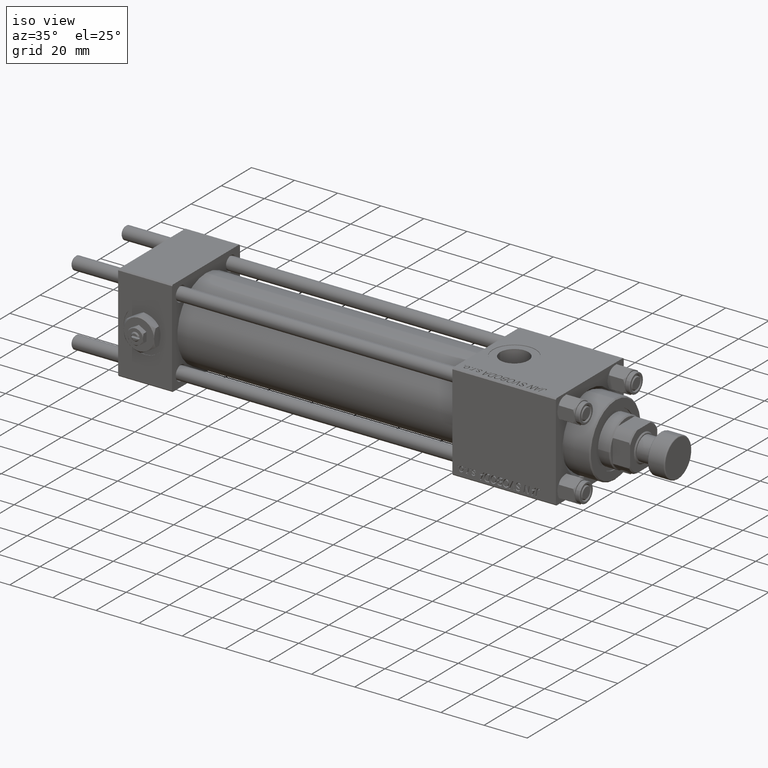
[diagram: clean part render]
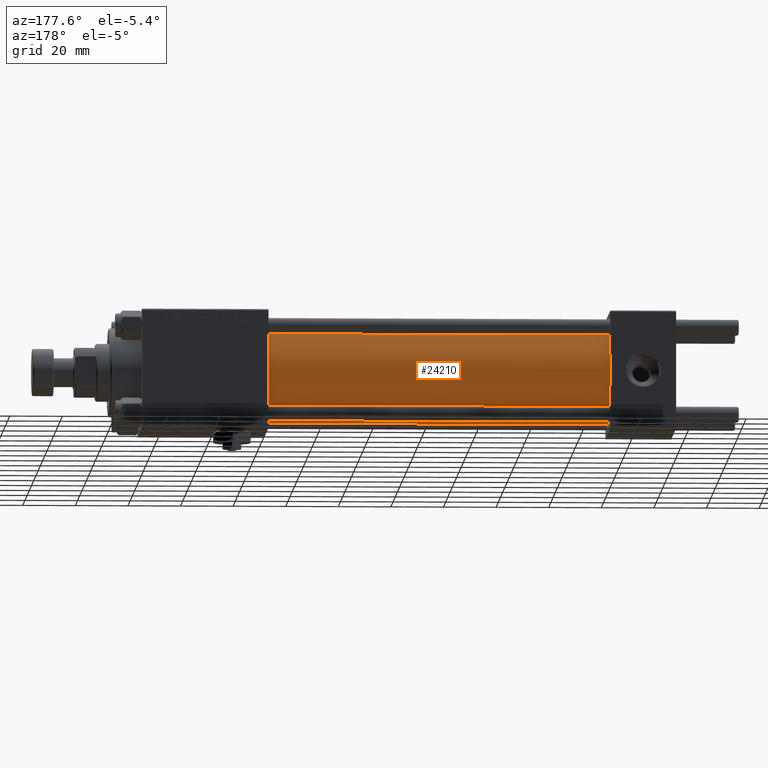
[diagram: tour spotlight — one face highlighted and labeled with its STEP entity id]
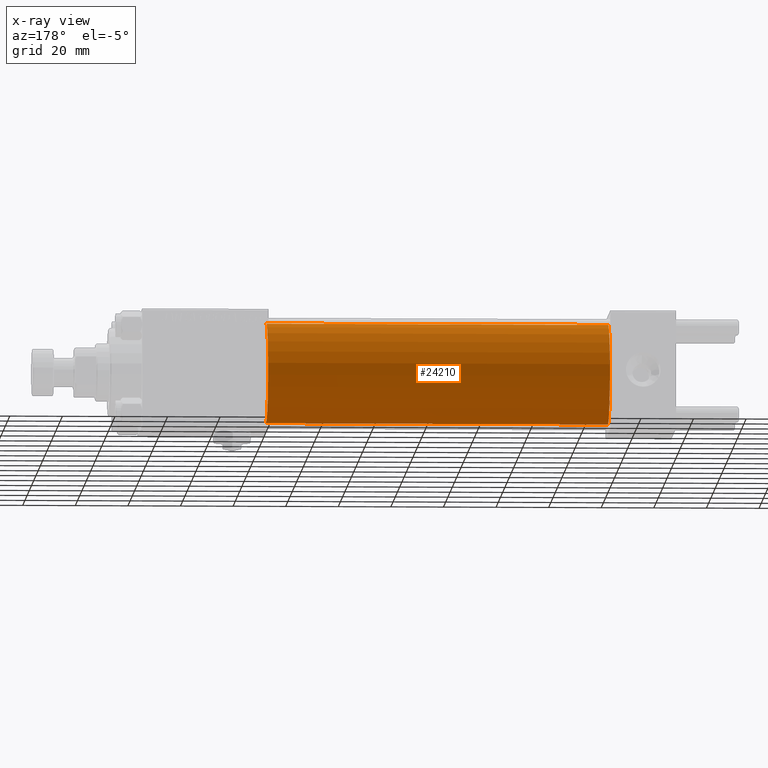
[diagram: x-ray of the same camera — body ghosted, this tour face saturated]
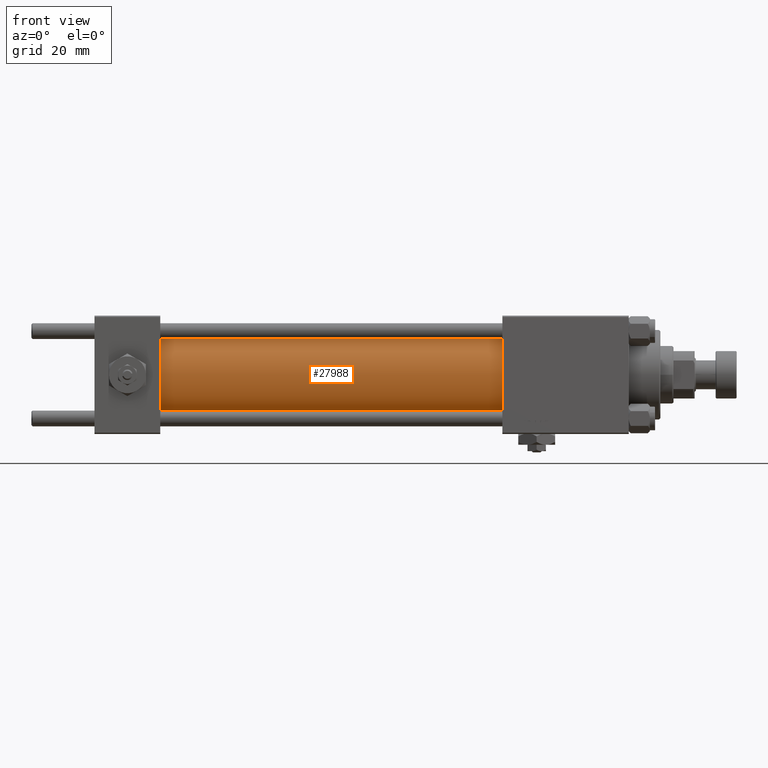
[diagram: tour spotlight — one face highlighted and labeled with its STEP entity id]
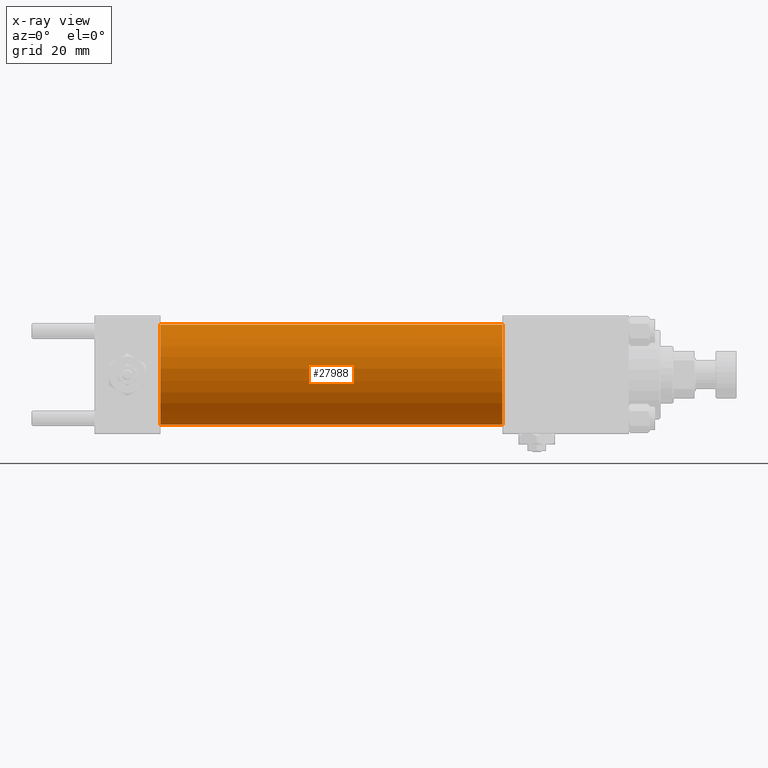
[diagram: x-ray of the same camera — body ghosted, this tour face saturated]
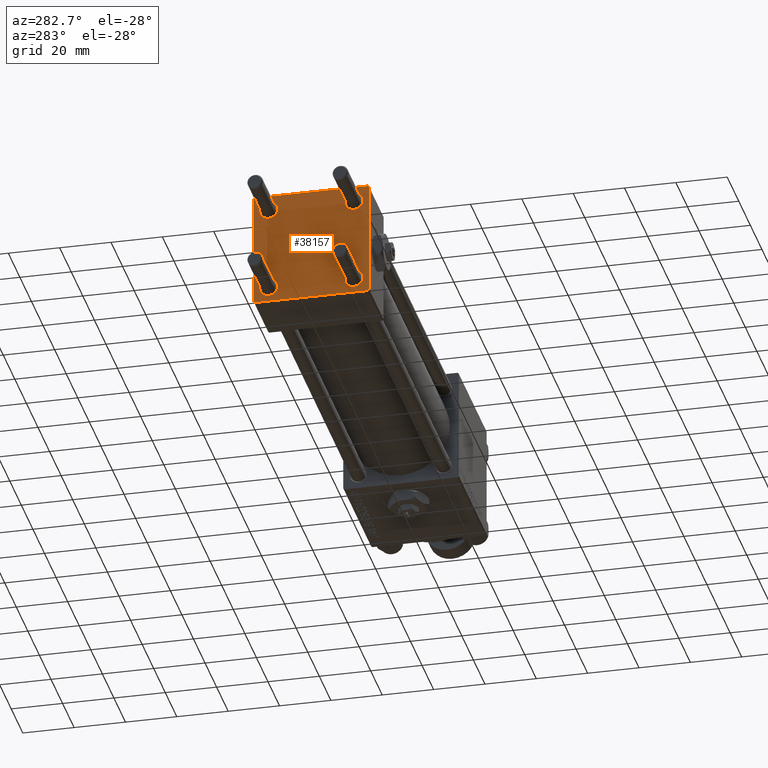
[diagram: tour spotlight — one face highlighted and labeled with its STEP entity id]
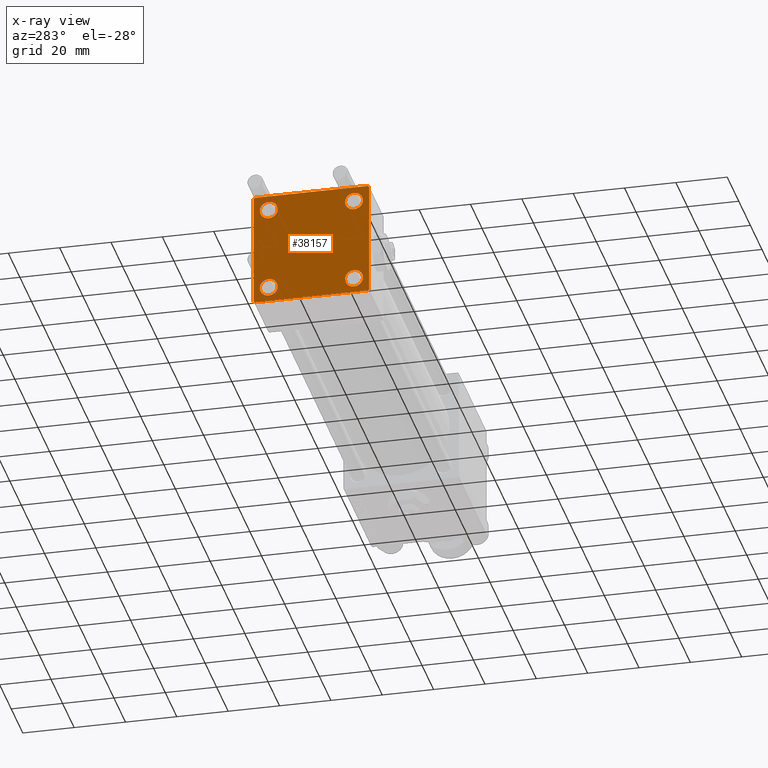
[diagram: x-ray of the same camera — body ghosted, this tour face saturated]
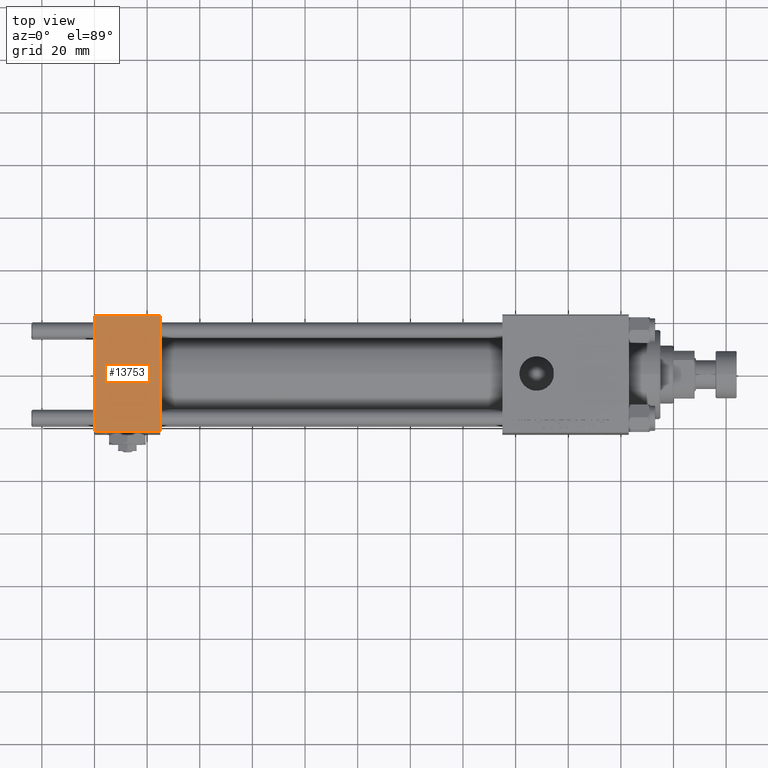
[diagram: tour spotlight — one face highlighted and labeled with its STEP entity id]
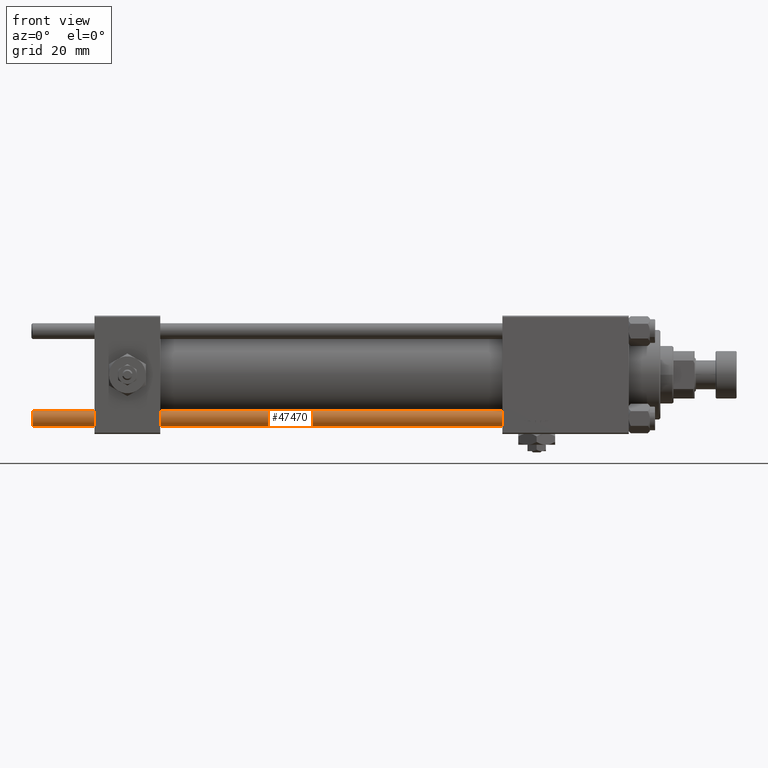
[diagram: tour spotlight — one face highlighted and labeled with its STEP entity id]
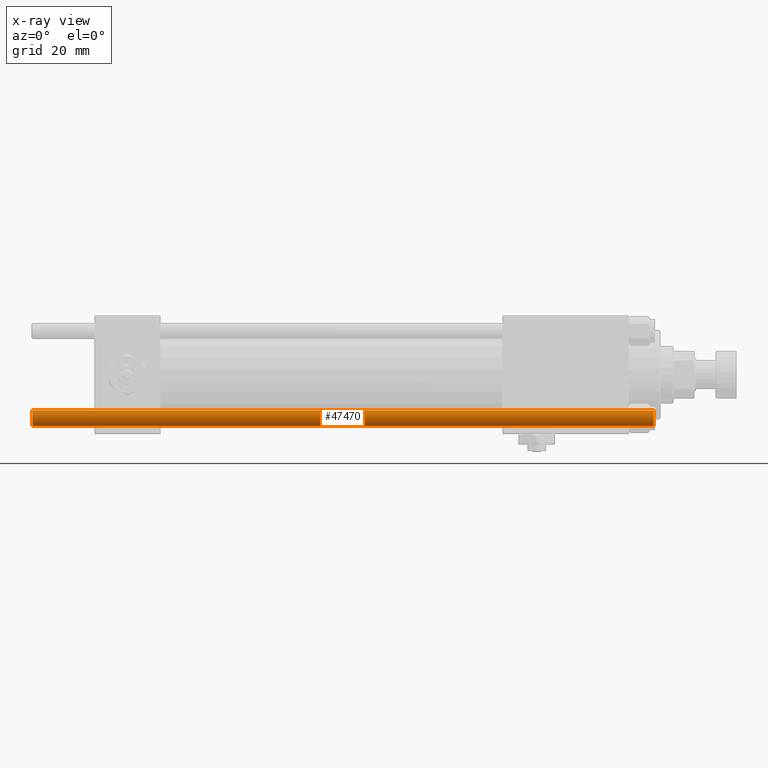
[diagram: x-ray of the same camera — body ghosted, this tour face saturated]
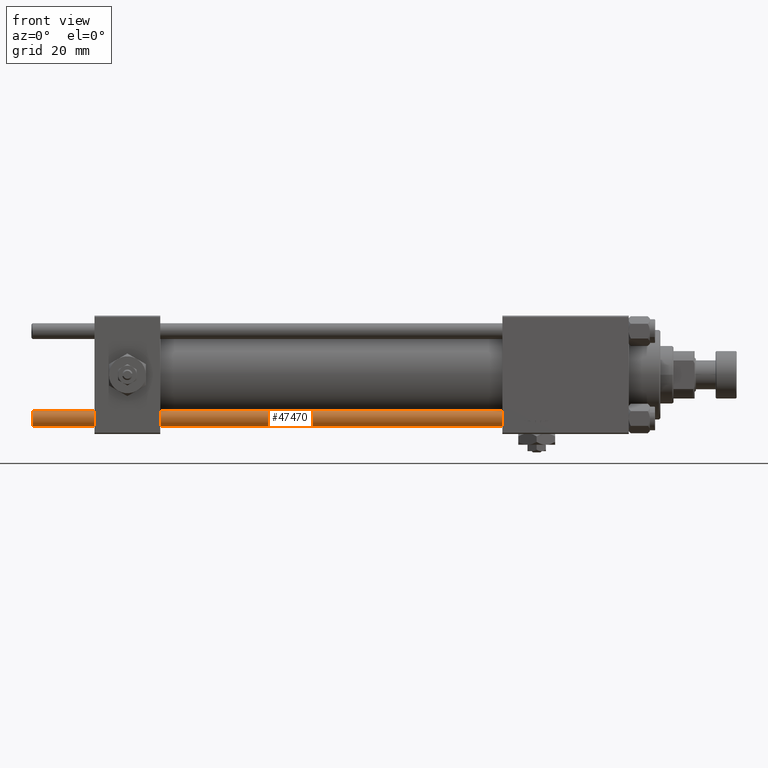
[diagram: tour spotlight — one face highlighted and labeled with its STEP entity id]
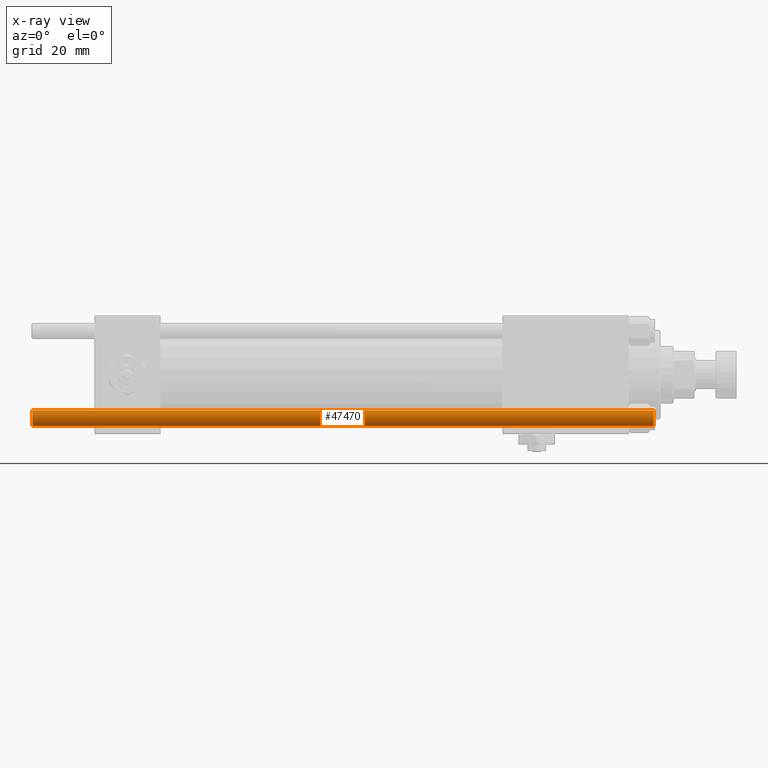
[diagram: x-ray of the same camera — body ghosted, this tour face saturated]
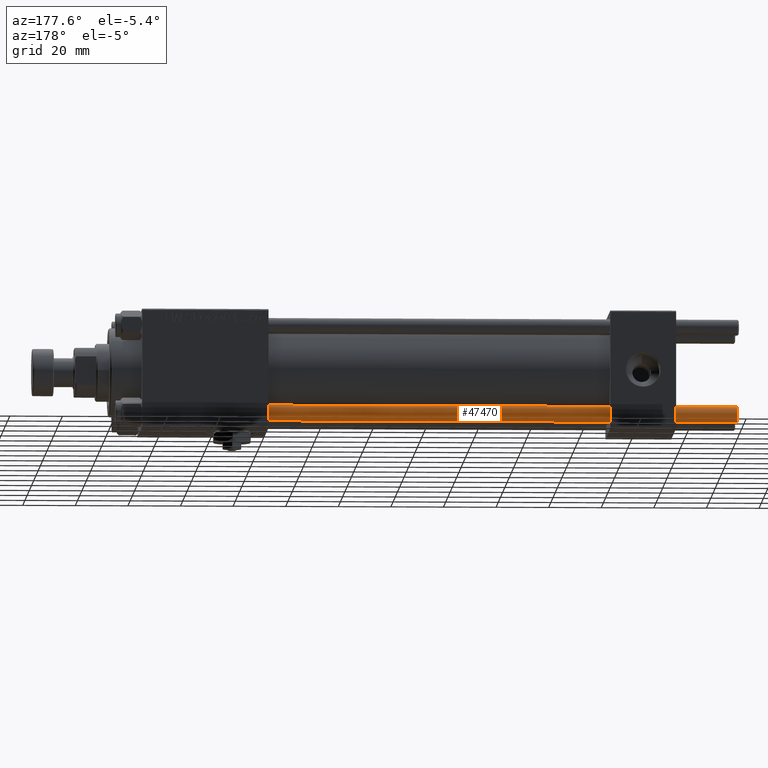
[diagram: tour spotlight — one face highlighted and labeled with its STEP entity id]
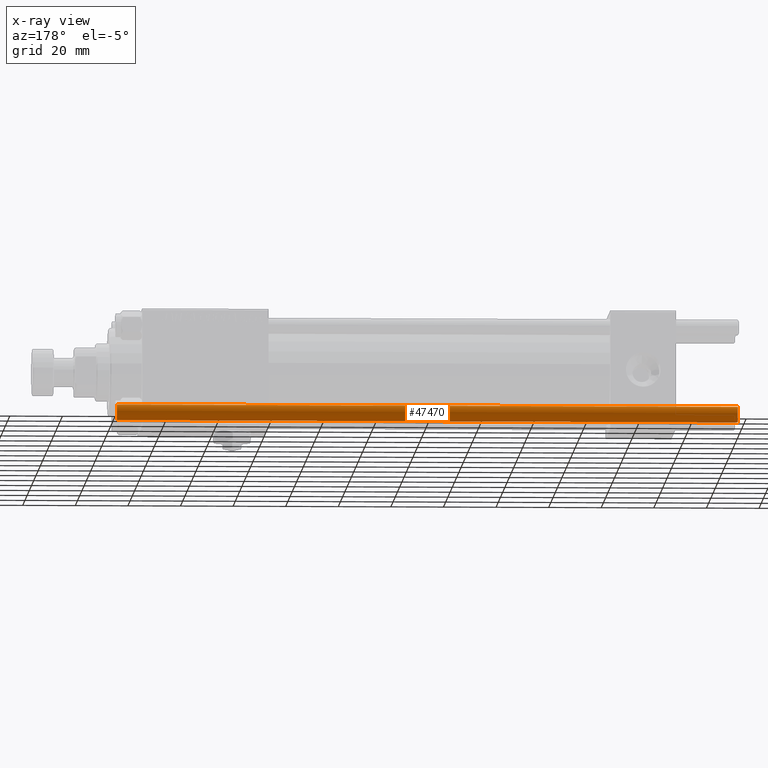
[diagram: x-ray of the same camera — body ghosted, this tour face saturated]
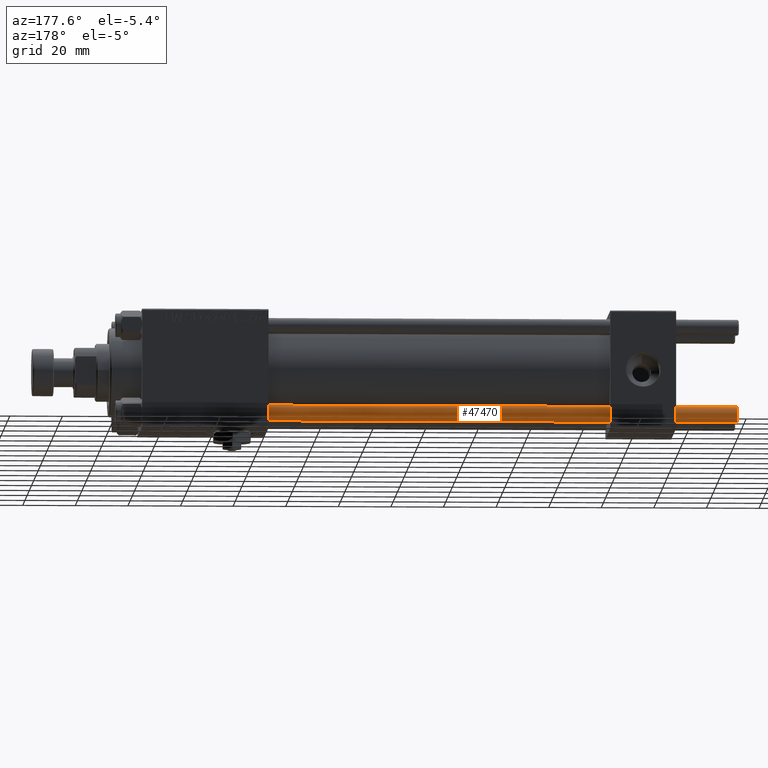
[diagram: tour spotlight — one face highlighted and labeled with its STEP entity id]
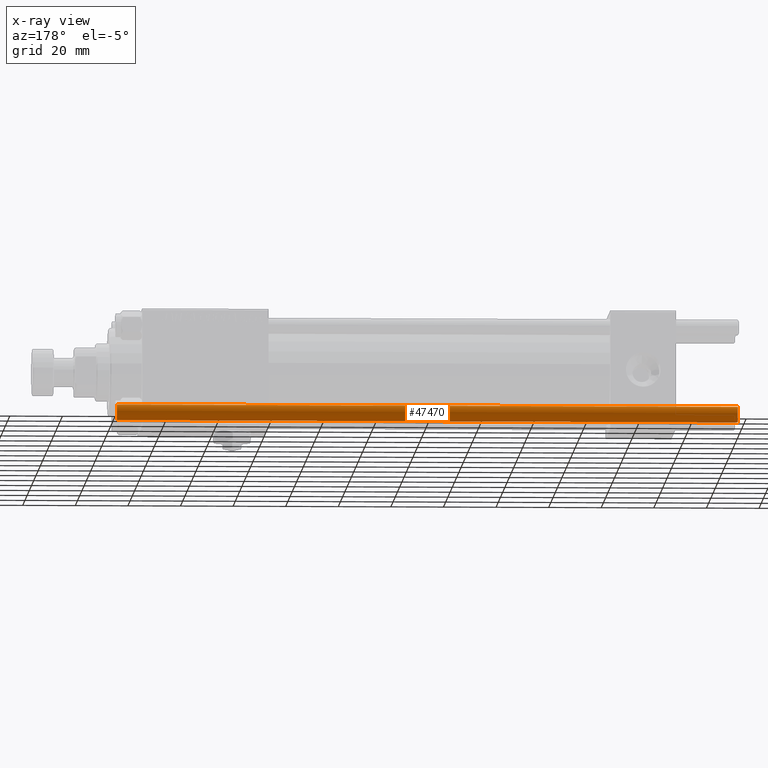
[diagram: x-ray of the same camera — body ghosted, this tour face saturated]
A machine part: a face-by-face anatomy tour. The part has 1246 B-rep faces; the first image is the clean iso view, then the 8 largest visible faces are spotlighted one at a time (largest first), each with its STEP entity span.

Face 1 — auxiliary view, entity #24210. An x-ray twin of the same camera follows (body ghosted, this face saturated) — the face is partly hidden behind the body. In plain terms, the highlighted cylindrical surface (partial cylindrical patch) has radius 19 mm, axis along (-1, -0, -0).
Definition (entity closure, byte-faithful):
#246 = EDGE_CURVE ( 'NONE', #14867, #5643, #21265, .T. ) ;
#5452 = CARTESIAN_POINT ( 'NONE',  ( 24.99999999999999289, 2.326828918379970970E-15, -19.00000000000000000 ) ) ;
#5643 = VERTEX_POINT ( 'NONE', #5452 ) ;
#6971 = CARTESIAN_POINT ( 'NONE',  ( 155.0000000000000000, 0.000000000000000000, 19.00000000000000000 ) ) ;
#8452 = AXIS2_PLACEMENT_3D ( 'NONE', #18683, #26353, #10503 ) ;
#9302 = ORIENTED_EDGE ( 'NONE', *, *, #48230, .F. ) ;
#9327 = ORIENTED_EDGE ( 'NONE', *, *, #17625, .F. ) ;
#10503 = DIRECTION ( 'NONE',  ( 0.000000000000000000, 0.000000000000000000, 1.000000000000000000 ) ) ;
#10697 = ORIENTED_EDGE ( 'NONE', *, *, #246, .T. ) ;
#10985 = DIRECTION ( 'NONE',  ( 0.000000000000000000, 0.000000000000000000, -1.000000000000000000 ) ) ;
#11005 = VECTOR ( 'NONE', #21394, 1000.000000000000000 ) ;
#14814 = CARTESIAN_POINT ( 'NONE',  ( 155.0000000000000000, 0.000000000000000000, 0.000000000000000000 ) ) ;
#14867 = VERTEX_POINT ( 'NONE', #48050 ) ;
#16583 = VERTEX_POINT ( 'NONE', #21977 ) ;
#16642 = LINE ( 'NONE', #37002, #11005 ) ;
#17625 = EDGE_CURVE ( 'NONE', #26068, #16583, #16642, .T. ) ;
#18683 = CARTESIAN_POINT ( 'NONE',  ( 24.99999999999999289, 0.000000000000000000, 0.000000000000000000 ) ) ;
#19546 = FACE_OUTER_BOUND ( 'NONE', #30317, .T. ) ;
#20222 = DIRECTION ( 'NONE',  ( -1.000000000000000000, -0.000000000000000000, -0.000000000000000000 ) ) ;
#21265 = LINE ( 'NONE', #32905, #48645 ) ;
#21394 = DIRECTION ( 'NONE',  ( -1.000000000000000000, -0.000000000000000000, -0.000000000000000000 ) ) ;
#21977 = CARTESIAN_POINT ( 'NONE',  ( 24.99999999999999289, 0.000000000000000000, 19.00000000000000000 ) ) ;
#22322 = EDGE_CURVE ( 'NONE', #5643, #16583, #31240, .T. ) ;
#24210 = ADVANCED_FACE ( 'NONE', ( #19546 ), #39148, .T. ) ;
#26068 = VERTEX_POINT ( 'NONE', #6971 ) ;
#26353 = DIRECTION ( 'NONE',  ( 1.000000000000000000, -0.000000000000000000, 0.000000000000000000 ) ) ;
#26385 = CIRCLE ( 'NONE', #41572, 19.00000000000000000 ) ;
#30317 = EDGE_LOOP ( 'NONE', ( #9302, #10697, #35541, #9327 ) ) ;
#30481 = AXIS2_PLACEMENT_3D ( 'NONE', #14814, #51294, #42607 ) ;
#31062 = CARTESIAN_POINT ( 'NONE',  ( 155.0000000000000000, 0.000000000000000000, 0.000000000000000000 ) ) ;
#31240 = CIRCLE ( 'NONE', #8452, 19.00000000000000000 ) ;
#32905 = CARTESIAN_POINT ( 'NONE',  ( 155.0000000000000000, 2.326828918379970970E-15, -19.00000000000000000 ) ) ;
#35541 = ORIENTED_EDGE ( 'NONE', *, *, #22322, .T. ) ;
#37002 = CARTESIAN_POINT ( 'NONE',  ( 155.0000000000000000, 0.000000000000000000, 19.00000000000000000 ) ) ;
#39148 = CYLINDRICAL_SURFACE ( 'NONE', #30481, 19.00000000000000000 ) ;
#41572 = AXIS2_PLACEMENT_3D ( 'NONE', #31062, #47210, #10985 ) ;
#42607 = DIRECTION ( 'NONE',  ( 0.000000000000000000, 0.000000000000000000, 1.000000000000000000 ) ) ;
#47210 = DIRECTION ( 'NONE',  ( 1.000000000000000000, 0.000000000000000000, 0.000000000000000000 ) ) ;
#48050 = CARTESIAN_POINT ( 'NONE',  ( 155.0000000000000000, 2.326828918379970970E-15, -19.00000000000000000 ) ) ;
#48230 = EDGE_CURVE ( 'NONE', #14867, #26068, #26385, .T. ) ;
#48645 = VECTOR ( 'NONE', #20222, 1000.000000000000000 ) ;
#51294 = DIRECTION ( 'NONE',  ( -1.000000000000000000, -0.000000000000000000, -0.000000000000000000 ) ) ;

Face 2 — front view, entity #27988. An x-ray twin of the same camera follows (body ghosted, this face saturated) — the face is partly hidden behind the body. In plain terms, the highlighted cylindrical surface (partial cylindrical patch) has radius 19 mm, axis along (-1, -0, -0).
Definition (entity closure, byte-faithful):
#246 = EDGE_CURVE ( 'NONE', #14867, #5643, #21265, .T. ) ;
#883 = EDGE_LOOP ( 'NONE', ( #27233, #44278, #13823, #18628 ) ) ;
#1967 = DIRECTION ( 'NONE',  ( 1.000000000000000000, -0.000000000000000000, 0.000000000000000000 ) ) ;
#1993 = DIRECTION ( 'NONE',  ( 0.000000000000000000, 0.000000000000000000, -1.000000000000000000 ) ) ;
#5452 = CARTESIAN_POINT ( 'NONE',  ( 24.99999999999999289, 2.326828918379970970E-15, -19.00000000000000000 ) ) ;
#5643 = VERTEX_POINT ( 'NONE', #5452 ) ;
#6971 = CARTESIAN_POINT ( 'NONE',  ( 155.0000000000000000, 0.000000000000000000, 19.00000000000000000 ) ) ;
#7561 = AXIS2_PLACEMENT_3D ( 'NONE', #42676, #1967, #42412 ) ;
#11005 = VECTOR ( 'NONE', #21394, 1000.000000000000000 ) ;
#11297 = FACE_OUTER_BOUND ( 'NONE', #883, .T. ) ;
#13490 = CIRCLE ( 'NONE', #7561, 19.00000000000000000 ) ;
#13624 = CARTESIAN_POINT ( 'NONE',  ( 155.0000000000000000, 0.000000000000000000, 0.000000000000000000 ) ) ;
#13823 = ORIENTED_EDGE ( 'NONE', *, *, #17625, .T. ) ;
#14867 = VERTEX_POINT ( 'NONE', #48050 ) ;
#15524 = DIRECTION ( 'NONE',  ( 0.000000000000000000, 0.000000000000000000, 1.000000000000000000 ) ) ;
#16297 = EDGE_CURVE ( 'NONE', #16583, #5643, #13490, .T. ) ;
#16583 = VERTEX_POINT ( 'NONE', #21977 ) ;
#16642 = LINE ( 'NONE', #37002, #11005 ) ;
#17582 = DIRECTION ( 'NONE',  ( 1.000000000000000000, 0.000000000000000000, 0.000000000000000000 ) ) ;
#17625 = EDGE_CURVE ( 'NONE', #26068, #16583, #16642, .T. ) ;
#18628 = ORIENTED_EDGE ( 'NONE', *, *, #16297, .T. ) ;
#19727 = DIRECTION ( 'NONE',  ( -1.000000000000000000, -0.000000000000000000, -0.000000000000000000 ) ) ;
#20222 = DIRECTION ( 'NONE',  ( -1.000000000000000000, -0.000000000000000000, -0.000000000000000000 ) ) ;
#20445 = AXIS2_PLACEMENT_3D ( 'NONE', #13624, #17582, #1993 ) ;
#21265 = LINE ( 'NONE', #32905, #48645 ) ;
#21394 = DIRECTION ( 'NONE',  ( -1.000000000000000000, -0.000000000000000000, -0.000000000000000000 ) ) ;
#21977 = CARTESIAN_POINT ( 'NONE',  ( 24.99999999999999289, 0.000000000000000000, 19.00000000000000000 ) ) ;
#26068 = VERTEX_POINT ( 'NONE', #6971 ) ;
#27233 = ORIENTED_EDGE ( 'NONE', *, *, #246, .F. ) ;
#27400 = CYLINDRICAL_SURFACE ( 'NONE', #44178, 19.00000000000000000 ) ;
#27988 = ADVANCED_FACE ( 'NONE', ( #11297 ), #27400, .T. ) ;
#31428 = CIRCLE ( 'NONE', #20445, 19.00000000000000000 ) ;
#32905 = CARTESIAN_POINT ( 'NONE',  ( 155.0000000000000000, 2.326828918379970970E-15, -19.00000000000000000 ) ) ;
#34122 = CARTESIAN_POINT ( 'NONE',  ( 155.0000000000000000, 0.000000000000000000, 0.000000000000000000 ) ) ;
#37002 = CARTESIAN_POINT ( 'NONE',  ( 155.0000000000000000, 0.000000000000000000, 19.00000000000000000 ) ) ;
#42412 = DIRECTION ( 'NONE',  ( 0.000000000000000000, 0.000000000000000000, 1.000000000000000000 ) ) ;
#42676 = CARTESIAN_POINT ( 'NONE',  ( 24.99999999999999289, 0.000000000000000000, 0.000000000000000000 ) ) ;
#44178 = AXIS2_PLACEMENT_3D ( 'NONE', #34122, #19727, #15524 ) ;
#44278 = ORIENTED_EDGE ( 'NONE', *, *, #49016, .F. ) ;
#48050 = CARTESIAN_POINT ( 'NONE',  ( 155.0000000000000000, 2.326828918379970970E-15, -19.00000000000000000 ) ) ;
#48645 = VECTOR ( 'NONE', #20222, 1000.000000000000000 ) ;
#49016 = EDGE_CURVE ( 'NONE', #26068, #14867, #31428, .T. ) ;

Face 3 — auxiliary view, entity #38157. An x-ray twin of the same camera follows (body ghosted, this face saturated) — the face is partly hidden behind the body. In plain terms, the highlighted planar face has unit normal (-1, 0, 0).
Definition (entity closure, byte-faithful):
#16 = CARTESIAN_POINT ( 'NONE',  ( 0.000000000000000000, -21.99999999999997868, 22.50000000000000000 ) ) ;
#72 = LINE ( 'NONE', #36552, #29389 ) ;
#180 = DIRECTION ( 'NONE',  ( -1.000000000000000000, 0.000000000000000000, -0.000000000000000000 ) ) ;
#210 = CIRCLE ( 'NONE', #36505, 3.499999999999996003 ) ;
#632 = AXIS2_PLACEMENT_3D ( 'NONE', #29166, #45324, #45065 ) ;
#1038 = EDGE_LOOP ( 'NONE', ( #8606, #38914, #38726, #8585, #18859, #50607, #6796, #32899 ) ) ;
#1085 = EDGE_CURVE ( 'NONE', #46774, #8761, #7137, .T. ) ;
#1416 = AXIS2_PLACEMENT_3D ( 'NONE', #16037, #180, #44857 ) ;
#1659 = CARTESIAN_POINT ( 'NONE',  ( 0.000000000000000000, -16.59999999999999076, -13.10000000000001030 ) ) ;
#2107 = EDGE_CURVE ( 'NONE', #28341, #45629, #43638, .T. ) ;
#2925 = CARTESIAN_POINT ( 'NONE',  ( 0.000000000000000000, -22.25000000000014566, -22.24999999999984013 ) ) ;
#3137 = VERTEX_POINT ( 'NONE', #7156 ) ;
#3506 = DIRECTION ( 'NONE',  ( 0.000000000000000000, 0.000000000000000000, -1.000000000000000000 ) ) ;
#3515 = DIRECTION ( 'NONE',  ( 0.000000000000000000, 0.000000000000000000, 1.000000000000000000 ) ) ;
#3835 = DIRECTION ( 'NONE',  ( 1.000000000000000000, -0.000000000000000000, 0.000000000000000000 ) ) ;
#3878 = FACE_BOUND ( 'NONE', #20753, .T. ) ;
#4080 = CIRCLE ( 'NONE', #31934, 3.499999999999996003 ) ;
#4141 = VERTEX_POINT ( 'NONE', #38188 ) ;
#4579 = CARTESIAN_POINT ( 'NONE',  ( 0.000000000000000000, -21.99999999999997158, -22.50000000000000711 ) ) ;
#5550 = CARTESIAN_POINT ( 'NONE',  ( 0.000000000000000000, -16.59999999999999076, -20.10000000000000497 ) ) ;
#6304 = ORIENTED_EDGE ( 'NONE', *, *, #49009, .T. ) ;
#6639 = EDGE_CURVE ( 'NONE', #3137, #48517, #42843, .T. ) ;
#6674 = CARTESIAN_POINT ( 'NONE',  ( -0.000000000000000000, -22.24999999999984013, 22.25000000000015277 ) ) ;
#6796 = ORIENTED_EDGE ( 'NONE', *, *, #7475, .F. ) ;
#7137 = LINE ( 'NONE', #22988, #45287 ) ;
#7156 = CARTESIAN_POINT ( 'NONE',  ( 0.000000000000000000, 16.59999999999999787, 13.10000000000000675 ) ) ;
#7475 = EDGE_CURVE ( 'NONE', #4141, #12046, #20356, .T. ) ;
#8369 = FACE_OUTER_BOUND ( 'NONE', #1038, .T. ) ;
#8585 = ORIENTED_EDGE ( 'NONE', *, *, #2107, .T. ) ;
#8606 = ORIENTED_EDGE ( 'NONE', *, *, #13146, .T. ) ;
#8761 = VERTEX_POINT ( 'NONE', #32342 ) ;
#9301 = DIRECTION ( 'NONE',  ( 0.000000000000000000, 0.000000000000000000, 1.000000000000000000 ) ) ;
#9397 = VERTEX_POINT ( 'NONE', #45180 ) ;
#10382 = DIRECTION ( 'NONE',  ( -0.000000000000000000, 0.7071067811865525687, 0.7071067811865425767 ) ) ;
#10872 = EDGE_CURVE ( 'NONE', #26676, #36715, #52131, .T. ) ;
#11453 = LINE ( 'NONE', #39743, #49790 ) ;
#11517 = CARTESIAN_POINT ( 'NONE',  ( 0.000000000000000000, 16.59999999999999787, -20.10000000000000142 ) ) ;
#11580 = LINE ( 'NONE', #22938, #28000 ) ;
#11896 = CARTESIAN_POINT ( 'NONE',  ( 0.000000000000000000, -16.59999999999999076, 16.60000000000000853 ) ) ;
#12046 = VERTEX_POINT ( 'NONE', #16 ) ;
#12296 = CARTESIAN_POINT ( 'NONE',  ( 0.000000000000000000, 16.59999999999999787, 16.60000000000000497 ) ) ;
#13146 = EDGE_CURVE ( 'NONE', #51737, #46774, #72, .T. ) ;
#13255 = EDGE_CURVE ( 'NONE', #9397, #33264, #4080, .T. ) ;
#13886 = CARTESIAN_POINT ( 'NONE',  ( 0.000000000000000000, 16.59999999999999787, -16.60000000000000497 ) ) ;
#13949 = CIRCLE ( 'NONE', #41787, 3.499999999999996003 ) ;
#14051 = VERTEX_POINT ( 'NONE', #45223 ) ;
#14541 = CARTESIAN_POINT ( 'NONE',  ( 0.000000000000000000, 22.50000000000000000, -21.99999999999996803 ) ) ;
#15781 = VECTOR ( 'NONE', #39671, 1000.000000000000000 ) ;
#16037 = CARTESIAN_POINT ( 'NONE',  ( 0.000000000000000000, 0.000000000000000000, 0.000000000000000000 ) ) ;
#16456 = EDGE_CURVE ( 'NONE', #14051, #45629, #11453, .T. ) ;
#16645 = AXIS2_PLACEMENT_3D ( 'NONE', #34994, #35511, #3515 ) ;
#17103 = CIRCLE ( 'NONE', #50883, 3.499999999999996003 ) ;
#17231 = CARTESIAN_POINT ( 'NONE',  ( 0.000000000000000000, -16.59999999999999076, 16.60000000000000853 ) ) ;
#18103 = EDGE_CURVE ( 'NONE', #48517, #3137, #52276, .T. ) ;
#18859 = ORIENTED_EDGE ( 'NONE', *, *, #16456, .F. ) ;
#19430 = DIRECTION ( 'NONE',  ( 0.000000000000000000, 0.000000000000000000, 1.000000000000000000 ) ) ;
#19995 = FACE_BOUND ( 'NONE', #44991, .T. ) ;
#20356 = LINE ( 'NONE', #36501, #28506 ) ;
#20490 = DIRECTION ( 'NONE',  ( 1.000000000000000000, -0.000000000000000000, 0.000000000000000000 ) ) ;
#20747 = CARTESIAN_POINT ( 'NONE',  ( 0.000000000000000000, -16.59999999999999076, -16.60000000000000853 ) ) ;
#20753 = EDGE_LOOP ( 'NONE', ( #22936, #42099 ) ) ;
#22936 = ORIENTED_EDGE ( 'NONE', *, *, #13255, .T. ) ;
#22938 = CARTESIAN_POINT ( 'NONE',  ( 0.000000000000000000, 22.50000000000000000, -22.49999999999999645 ) ) ;
#22988 = CARTESIAN_POINT ( 'NONE',  ( 0.000000000000000000, 22.25000000000014566, -22.24999999999984013 ) ) ;
#23092 = AXIS2_PLACEMENT_3D ( 'NONE', #11896, #43898, #40904 ) ;
#24057 = VECTOR ( 'NONE', #48789, 1000.000000000000114 ) ;
#24473 = PLANE ( 'NONE',  #1416 ) ;
#24836 = DIRECTION ( 'NONE',  ( 0.000000000000000000, -1.000000000000000000, -7.709882115452476934E-17 ) ) ;
#25346 = AXIS2_PLACEMENT_3D ( 'NONE', #12296, #3835, #19430 ) ;
#26537 = DIRECTION ( 'NONE',  ( 1.000000000000000000, -0.000000000000000000, 0.000000000000000000 ) ) ;
#26556 = ORIENTED_EDGE ( 'NONE', *, *, #35360, .T. ) ;
#26676 = VERTEX_POINT ( 'NONE', #5550 ) ;
#26775 = EDGE_LOOP ( 'NONE', ( #45018, #46957 ) ) ;
#28000 = VECTOR ( 'NONE', #35111, 1000.000000000000000 ) ;
#28341 = VERTEX_POINT ( 'NONE', #4579 ) ;
#28446 = FACE_BOUND ( 'NONE', #52022, .T. ) ;
#28506 = VECTOR ( 'NONE', #24836, 1000.000000000000000 ) ;
#28574 = EDGE_CURVE ( 'NONE', #14051, #12046, #50823, .T. ) ;
#28676 = DIRECTION ( 'NONE',  ( 0.000000000000000000, 0.000000000000000000, 1.000000000000000000 ) ) ;
#29166 = CARTESIAN_POINT ( 'NONE',  ( 0.000000000000000000, 16.59999999999999787, 16.60000000000000497 ) ) ;
#29184 = DIRECTION ( 'NONE',  ( 0.000000000000000000, 0.000000000000000000, 1.000000000000000000 ) ) ;
#29389 = VECTOR ( 'NONE', #48454, 1000.000000000000000 ) ;
#29807 = VECTOR ( 'NONE', #10382, 999.9999999999998863 ) ;
#31176 = DIRECTION ( 'NONE',  ( -0.000000000000000000, -0.7071067811865426878, -0.7071067811865524577 ) ) ;
#31934 = AXIS2_PLACEMENT_3D ( 'NONE', #17231, #45536, #9301 ) ;
#32291 = EDGE_CURVE ( 'NONE', #33264, #9397, #36609, .T. ) ;
#32316 = ORIENTED_EDGE ( 'NONE', *, *, #45562, .T. ) ;
#32342 = CARTESIAN_POINT ( 'NONE',  ( 0.000000000000000000, 21.99999999999999289, -22.49999999999999645 ) ) ;
#32657 = LINE ( 'NONE', #44061, #24057 ) ;
#32899 = ORIENTED_EDGE ( 'NONE', *, *, #36343, .T. ) ;
#33264 = VERTEX_POINT ( 'NONE', #42804 ) ;
#34994 = CARTESIAN_POINT ( 'NONE',  ( 0.000000000000000000, -16.59999999999999076, -16.60000000000000853 ) ) ;
#35111 = DIRECTION ( 'NONE',  ( 0.000000000000000000, -1.000000000000000000, -2.312964634635742957E-16 ) ) ;
#35360 = EDGE_CURVE ( 'NONE', #50947, #40035, #13949, .T. ) ;
#35511 = DIRECTION ( 'NONE',  ( 1.000000000000000000, -0.000000000000000000, 0.000000000000000000 ) ) ;
#36320 = CARTESIAN_POINT ( 'NONE',  ( 0.000000000000000000, 22.50000000000000000, 21.99999999999999645 ) ) ;
#36343 = EDGE_CURVE ( 'NONE', #4141, #51737, #32657, .T. ) ;
#36501 = CARTESIAN_POINT ( 'NONE',  ( 0.000000000000000000, 22.50000000000000000, 22.50000000000000355 ) ) ;
#36505 = AXIS2_PLACEMENT_3D ( 'NONE', #20747, #20490, #28676 ) ;
#36552 = CARTESIAN_POINT ( 'NONE',  ( 0.000000000000000000, 22.50000000000000000, 22.50000000000000355 ) ) ;
#36609 = CIRCLE ( 'NONE', #23092, 3.499999999999996003 ) ;
#36715 = VERTEX_POINT ( 'NONE', #1659 ) ;
#38157 = ADVANCED_FACE ( 'NONE', ( #3878, #19995, #28446, #40630, #8369 ), #24473, .T. ) ;
#38188 = CARTESIAN_POINT ( 'NONE',  ( 0.000000000000000000, 21.99999999999999289, 22.50000000000000355 ) ) ;
#38206 = DIRECTION ( 'NONE',  ( 0.000000000000000000, 0.000000000000000000, 1.000000000000000000 ) ) ;
#38726 = ORIENTED_EDGE ( 'NONE', *, *, #47830, .T. ) ;
#38914 = ORIENTED_EDGE ( 'NONE', *, *, #1085, .T. ) ;
#39671 = DIRECTION ( 'NONE',  ( 0.000000000000000000, -0.7071067811865426878, 0.7071067811865524577 ) ) ;
#39743 = CARTESIAN_POINT ( 'NONE',  ( 0.000000000000000000, -22.50000000000000000, 22.50000000000000000 ) ) ;
#40035 = VERTEX_POINT ( 'NONE', #11517 ) ;
#40044 = CARTESIAN_POINT ( 'NONE',  ( 0.000000000000000000, 16.59999999999999787, -13.10000000000000675 ) ) ;
#40630 = FACE_BOUND ( 'NONE', #26775, .T. ) ;
#40904 = DIRECTION ( 'NONE',  ( 0.000000000000000000, 0.000000000000000000, 1.000000000000000000 ) ) ;
#41119 = DIRECTION ( 'NONE',  ( 1.000000000000000000, -0.000000000000000000, 0.000000000000000000 ) ) ;
#41647 = CARTESIAN_POINT ( 'NONE',  ( 0.000000000000000000, -22.50000000000000000, -21.99999999999997158 ) ) ;
#41787 = AXIS2_PLACEMENT_3D ( 'NONE', #13886, #41119, #29184 ) ;
#42099 = ORIENTED_EDGE ( 'NONE', *, *, #32291, .T. ) ;
#42436 = CARTESIAN_POINT ( 'NONE',  ( 0.000000000000000000, 16.59999999999999787, -16.60000000000000497 ) ) ;
#42804 = CARTESIAN_POINT ( 'NONE',  ( 0.000000000000000000, -16.59999999999999076, 13.10000000000001030 ) ) ;
#42843 = CIRCLE ( 'NONE', #632, 3.499999999999996003 ) ;
#43638 = LINE ( 'NONE', #2925, #15781 ) ;
#43898 = DIRECTION ( 'NONE',  ( 1.000000000000000000, -0.000000000000000000, 0.000000000000000000 ) ) ;
#44061 = CARTESIAN_POINT ( 'NONE',  ( 0.000000000000000000, 22.24999999999999645, 22.24999999999999645 ) ) ;
#44857 = DIRECTION ( 'NONE',  ( -0.000000000000000000, 0.000000000000000000, 1.000000000000000000 ) ) ;
#44991 = EDGE_LOOP ( 'NONE', ( #32316, #48776 ) ) ;
#45018 = ORIENTED_EDGE ( 'NONE', *, *, #18103, .T. ) ;
#45065 = DIRECTION ( 'NONE',  ( 0.000000000000000000, 0.000000000000000000, 1.000000000000000000 ) ) ;
#45180 = CARTESIAN_POINT ( 'NONE',  ( 0.000000000000000000, -16.59999999999999076, 20.10000000000000853 ) ) ;
#45223 = CARTESIAN_POINT ( 'NONE',  ( 0.000000000000000000, -22.50000000000000000, 22.00000000000000000 ) ) ;
#45287 = VECTOR ( 'NONE', #31176, 1000.000000000000000 ) ;
#45324 = DIRECTION ( 'NONE',  ( 1.000000000000000000, -0.000000000000000000, 0.000000000000000000 ) ) ;
#45536 = DIRECTION ( 'NONE',  ( 1.000000000000000000, -0.000000000000000000, 0.000000000000000000 ) ) ;
#45562 = EDGE_CURVE ( 'NONE', #36715, #26676, #210, .T. ) ;
#45629 = VERTEX_POINT ( 'NONE', #41647 ) ;
#46774 = VERTEX_POINT ( 'NONE', #14541 ) ;
#46957 = ORIENTED_EDGE ( 'NONE', *, *, #6639, .T. ) ;
#47830 = EDGE_CURVE ( 'NONE', #8761, #28341, #11580, .T. ) ;
#48454 = DIRECTION ( 'NONE',  ( 0.000000000000000000, 0.000000000000000000, -1.000000000000000000 ) ) ;
#48517 = VERTEX_POINT ( 'NONE', #50841 ) ;
#48776 = ORIENTED_EDGE ( 'NONE', *, *, #10872, .T. ) ;
#48789 = DIRECTION ( 'NONE',  ( 0.000000000000000000, 0.7071067811865474617, -0.7071067811865474617 ) ) ;
#49009 = EDGE_CURVE ( 'NONE', #40035, #50947, #17103, .T. ) ;
#49790 = VECTOR ( 'NONE', #3506, 1000.000000000000000 ) ;
#50607 = ORIENTED_EDGE ( 'NONE', *, *, #28574, .T. ) ;
#50823 = LINE ( 'NONE', #6674, #29807 ) ;
#50841 = CARTESIAN_POINT ( 'NONE',  ( 0.000000000000000000, 16.59999999999999787, 20.10000000000000142 ) ) ;
#50883 = AXIS2_PLACEMENT_3D ( 'NONE', #42436, #26537, #38206 ) ;
#50947 = VERTEX_POINT ( 'NONE', #40044 ) ;
#51737 = VERTEX_POINT ( 'NONE', #36320 ) ;
#52022 = EDGE_LOOP ( 'NONE', ( #26556, #6304 ) ) ;
#52131 = CIRCLE ( 'NONE', #16645, 3.499999999999996003 ) ;
#52276 = CIRCLE ( 'NONE', #25346, 3.499999999999996003 ) ;

Face 4 — top view, entity #13753. In plain terms, the highlighted planar face has unit normal (0, 0, -1).
Definition (entity closure, byte-faithful):
#16 = CARTESIAN_POINT ( 'NONE',  ( 0.000000000000000000, -21.99999999999997868, 22.50000000000000000 ) ) ;
#1300 = CARTESIAN_POINT ( 'NONE',  ( 25.00000000000000000, 22.50000000000000000, 22.50000000000000355 ) ) ;
#1531 = CARTESIAN_POINT ( 'NONE',  ( 25.00000000000000000, 22.50000000000000000, 22.50000000000000355 ) ) ;
#2648 = EDGE_CURVE ( 'NONE', #12046, #16884, #40908, .T. ) ;
#4141 = VERTEX_POINT ( 'NONE', #38188 ) ;
#5485 = PLANE ( 'NONE',  #23483 ) ;
#5787 = DIRECTION ( 'NONE',  ( 0.000000000000000000, -1.000000000000000000, -7.709882115452476934E-17 ) ) ;
#7475 = EDGE_CURVE ( 'NONE', #4141, #12046, #20356, .T. ) ;
#10417 = EDGE_LOOP ( 'NONE', ( #17724, #35050, #25188, #51128 ) ) ;
#11831 = VERTEX_POINT ( 'NONE', #13548 ) ;
#12046 = VERTEX_POINT ( 'NONE', #16 ) ;
#13548 = CARTESIAN_POINT ( 'NONE',  ( 25.00000000000000000, 21.99999999999999289, 22.50000000000000355 ) ) ;
#13753 = ADVANCED_FACE ( 'NONE', ( #41718 ), #5485, .F. ) ;
#16201 = VECTOR ( 'NONE', #5787, 1000.000000000000000 ) ;
#16823 = CARTESIAN_POINT ( 'NONE',  ( 25.00000000000000000, -21.99999999999999289, 22.50000000000000000 ) ) ;
#16884 = VERTEX_POINT ( 'NONE', #18732 ) ;
#16949 = VECTOR ( 'NONE', #50638, 1000.000000000000000 ) ;
#17724 = ORIENTED_EDGE ( 'NONE', *, *, #7475, .T. ) ;
#18732 = CARTESIAN_POINT ( 'NONE',  ( 25.00000000000000000, -21.99999999999997868, 22.50000000000000000 ) ) ;
#20356 = LINE ( 'NONE', #36501, #28506 ) ;
#23483 = AXIS2_PLACEMENT_3D ( 'NONE', #1531, #27571, #28094 ) ;
#24836 = DIRECTION ( 'NONE',  ( 0.000000000000000000, -1.000000000000000000, -7.709882115452476934E-17 ) ) ;
#25188 = ORIENTED_EDGE ( 'NONE', *, *, #43298, .F. ) ;
#27338 = LINE ( 'NONE', #46938, #16949 ) ;
#27571 = DIRECTION ( 'NONE',  ( 0.000000000000000000, 7.709882115452476934E-17, -1.000000000000000000 ) ) ;
#28094 = DIRECTION ( 'NONE',  ( 0.000000000000000000, 1.000000000000000000, 7.709882115452476934E-17 ) ) ;
#28506 = VECTOR ( 'NONE', #24836, 1000.000000000000000 ) ;
#32950 = DIRECTION ( 'NONE',  ( 1.000000000000000000, 0.000000000000000000, 0.000000000000000000 ) ) ;
#34082 = LINE ( 'NONE', #1300, #16201 ) ;
#35050 = ORIENTED_EDGE ( 'NONE', *, *, #2648, .T. ) ;
#36501 = CARTESIAN_POINT ( 'NONE',  ( 0.000000000000000000, 22.50000000000000000, 22.50000000000000355 ) ) ;
#38188 = CARTESIAN_POINT ( 'NONE',  ( 0.000000000000000000, 21.99999999999999289, 22.50000000000000355 ) ) ;
#40908 = LINE ( 'NONE', #16823, #51254 ) ;
#41485 = EDGE_CURVE ( 'NONE', #11831, #4141, #27338, .T. ) ;
#41718 = FACE_OUTER_BOUND ( 'NONE', #10417, .T. ) ;
#43298 = EDGE_CURVE ( 'NONE', #11831, #16884, #34082, .T. ) ;
#46938 = CARTESIAN_POINT ( 'NONE',  ( 0.000000000000000000, 21.99999999999999289, 22.50000000000000355 ) ) ;
#50638 = DIRECTION ( 'NONE',  ( -1.000000000000000000, 0.000000000000000000, 0.000000000000000000 ) ) ;
#51128 = ORIENTED_EDGE ( 'NONE', *, *, #41485, .T. ) ;
#51254 = VECTOR ( 'NONE', #32950, 1000.000000000000000 ) ;

Face 5 — front view, entity #47470. An x-ray twin of the same camera follows (body ghosted, this face saturated) — the face is partly hidden behind the body. In plain terms, the highlighted cylindrical surface (edge-blend (fillet) strip) has radius 3 mm, axis along (1, -0, 0).
Definition (entity closure, byte-faithful):
#1506 = ORIENTED_EDGE ( 'NONE', *, *, #32290, .T. ) ;
#2012 = ORIENTED_EDGE ( 'NONE', *, *, #28402, .T. ) ;
#4487 = VECTOR ( 'NONE', #25435, 1000.000000000000000 ) ;
#4826 = VECTOR ( 'NONE', #39561, 1000.000000000000000 ) ;
#4917 = CARTESIAN_POINT ( 'NONE',  ( 0.000000000000000000, 0.000000000000000000, 236.5000000000000568 ) ) ;
#5125 = VERTEX_POINT ( 'NONE', #39139 ) ;
#7015 = CARTESIAN_POINT ( 'NONE',  ( 0.000000000000000000, 0.000000000000000000, 237.0000000000000000 ) ) ;
#8636 = DIRECTION ( 'NONE',  ( 1.000000000000000000, 0.000000000000000000, 0.000000000000000000 ) ) ;
#8777 = DIRECTION ( 'NONE',  ( -0.000000000000000000, -0.000000000000000000, 1.000000000000000000 ) ) ;
#9072 = CARTESIAN_POINT ( 'NONE',  ( 3.000000000000000444, 3.673940397442060361E-16, 236.5000000000000568 ) ) ;
#10577 = EDGE_CURVE ( 'NONE', #5125, #18820, #31595, .T. ) ;
#10940 = EDGE_CURVE ( 'NONE', #24976, #18820, #31022, .T. ) ;
#14675 = CYLINDRICAL_SURFACE ( 'NONE', #29690, 3.000000000000000444 ) ;
#14969 = CARTESIAN_POINT ( 'NONE',  ( -3.000000000000000444, 0.000000000000000000, 0.5000000000000004441 ) ) ;
#15613 = CARTESIAN_POINT ( 'NONE',  ( 3.000000000000000444, 3.673940397442060361E-16, 0.5000000000000004441 ) ) ;
#16705 = CARTESIAN_POINT ( 'NONE',  ( 0.000000000000000000, 0.000000000000000000, 0.5000000000000004441 ) ) ;
#18820 = VERTEX_POINT ( 'NONE', #14969 ) ;
#18904 = DIRECTION ( 'NONE',  ( -0.000000000000000000, -0.000000000000000000, -1.000000000000000000 ) ) ;
#19543 = DIRECTION ( 'NONE',  ( 0.000000000000000000, 0.000000000000000000, -1.000000000000000000 ) ) ;
#19681 = CIRCLE ( 'NONE', #28140, 3.000000000000000444 ) ;
#20467 = ORIENTED_EDGE ( 'NONE', *, *, #10577, .F. ) ;
#20956 = LINE ( 'NONE', #25173, #4487 ) ;
#24976 = VERTEX_POINT ( 'NONE', #15613 ) ;
#25173 = CARTESIAN_POINT ( 'NONE',  ( 3.000000000000000444, 3.673940397442060361E-16, 237.0000000000000000 ) ) ;
#25435 = DIRECTION ( 'NONE',  ( -0.000000000000000000, -0.000000000000000000, -1.000000000000000000 ) ) ;
#28140 = AXIS2_PLACEMENT_3D ( 'NONE', #4917, #19543, #8636 ) ;
#28402 = EDGE_CURVE ( 'NONE', #50985, #24976, #20956, .T. ) ;
#29690 = AXIS2_PLACEMENT_3D ( 'NONE', #7015, #18904, #42977 ) ;
#30982 = AXIS2_PLACEMENT_3D ( 'NONE', #16705, #8777, #40263 ) ;
#31022 = CIRCLE ( 'NONE', #30982, 3.000000000000000444 ) ;
#31595 = LINE ( 'NONE', #51960, #4826 ) ;
#32290 = EDGE_CURVE ( 'NONE', #5125, #50985, #19681, .T. ) ;
#35449 = EDGE_LOOP ( 'NONE', ( #1506, #2012, #42715, #20467 ) ) ;
#39139 = CARTESIAN_POINT ( 'NONE',  ( -3.000000000000000444, 0.000000000000000000, 236.5000000000000568 ) ) ;
#39561 = DIRECTION ( 'NONE',  ( -0.000000000000000000, -0.000000000000000000, -1.000000000000000000 ) ) ;
#40263 = DIRECTION ( 'NONE',  ( 1.000000000000000000, 0.000000000000000000, 0.000000000000000000 ) ) ;
#42715 = ORIENTED_EDGE ( 'NONE', *, *, #10940, .T. ) ;
#42977 = DIRECTION ( 'NONE',  ( -1.000000000000000000, 0.000000000000000000, 0.000000000000000000 ) ) ;
#43243 = FACE_OUTER_BOUND ( 'NONE', #35449, .T. ) ;
#47470 = ADVANCED_FACE ( 'NONE', ( #43243 ), #14675, .T. ) ;
#50985 = VERTEX_POINT ( 'NONE', #9072 ) ;
#51960 = CARTESIAN_POINT ( 'NONE',  ( -3.000000000000000444, 0.000000000000000000, 237.0000000000000000 ) ) ;

Face 6 — front view, entity #47470. An x-ray twin of the same camera follows (body ghosted, this face saturated) — the face is partly hidden behind the body. In plain terms, the highlighted cylindrical surface (edge-blend (fillet) strip) has radius 3 mm, axis along (-1, 0, 0).
Definition (entity closure, byte-faithful):
#1506 = ORIENTED_EDGE ( 'NONE', *, *, #32290, .T. ) ;
#2012 = ORIENTED_EDGE ( 'NONE', *, *, #28402, .T. ) ;
#4487 = VECTOR ( 'NONE', #25435, 1000.000000000000000 ) ;
#4826 = VECTOR ( 'NONE', #39561, 1000.000000000000000 ) ;
#4917 = CARTESIAN_POINT ( 'NONE',  ( 0.000000000000000000, 0.000000000000000000, 236.5000000000000568 ) ) ;
#5125 = VERTEX_POINT ( 'NONE', #39139 ) ;
#7015 = CARTESIAN_POINT ( 'NONE',  ( 0.000000000000000000, 0.000000000000000000, 237.0000000000000000 ) ) ;
#8636 = DIRECTION ( 'NONE',  ( 1.000000000000000000, 0.000000000000000000, 0.000000000000000000 ) ) ;
#8777 = DIRECTION ( 'NONE',  ( -0.000000000000000000, -0.000000000000000000, 1.000000000000000000 ) ) ;
#9072 = CARTESIAN_POINT ( 'NONE',  ( 3.000000000000000444, 3.673940397442060361E-16, 236.5000000000000568 ) ) ;
#10577 = EDGE_CURVE ( 'NONE', #5125, #18820, #31595, .T. ) ;
#10940 = EDGE_CURVE ( 'NONE', #24976, #18820, #31022, .T. ) ;
#14675 = CYLINDRICAL_SURFACE ( 'NONE', #29690, 3.000000000000000444 ) ;
#14969 = CARTESIAN_POINT ( 'NONE',  ( -3.000000000000000444, 0.000000000000000000, 0.5000000000000004441 ) ) ;
#15613 = CARTESIAN_POINT ( 'NONE',  ( 3.000000000000000444, 3.673940397442060361E-16, 0.5000000000000004441 ) ) ;
#16705 = CARTESIAN_POINT ( 'NONE',  ( 0.000000000000000000, 0.000000000000000000, 0.5000000000000004441 ) ) ;
#18820 = VERTEX_POINT ( 'NONE', #14969 ) ;
#18904 = DIRECTION ( 'NONE',  ( -0.000000000000000000, -0.000000000000000000, -1.000000000000000000 ) ) ;
#19543 = DIRECTION ( 'NONE',  ( 0.000000000000000000, 0.000000000000000000, -1.000000000000000000 ) ) ;
#19681 = CIRCLE ( 'NONE', #28140, 3.000000000000000444 ) ;
#20467 = ORIENTED_EDGE ( 'NONE', *, *, #10577, .F. ) ;
#20956 = LINE ( 'NONE', #25173, #4487 ) ;
#24976 = VERTEX_POINT ( 'NONE', #15613 ) ;
#25173 = CARTESIAN_POINT ( 'NONE',  ( 3.000000000000000444, 3.673940397442060361E-16, 237.0000000000000000 ) ) ;
#25435 = DIRECTION ( 'NONE',  ( -0.000000000000000000, -0.000000000000000000, -1.000000000000000000 ) ) ;
#28140 = AXIS2_PLACEMENT_3D ( 'NONE', #4917, #19543, #8636 ) ;
#28402 = EDGE_CURVE ( 'NONE', #50985, #24976, #20956, .T. ) ;
#29690 = AXIS2_PLACEMENT_3D ( 'NONE', #7015, #18904, #42977 ) ;
#30982 = AXIS2_PLACEMENT_3D ( 'NONE', #16705, #8777, #40263 ) ;
#31022 = CIRCLE ( 'NONE', #30982, 3.000000000000000444 ) ;
#31595 = LINE ( 'NONE', #51960, #4826 ) ;
#32290 = EDGE_CURVE ( 'NONE', #5125, #50985, #19681, .T. ) ;
#35449 = EDGE_LOOP ( 'NONE', ( #1506, #2012, #42715, #20467 ) ) ;
#39139 = CARTESIAN_POINT ( 'NONE',  ( -3.000000000000000444, 0.000000000000000000, 236.5000000000000568 ) ) ;
#39561 = DIRECTION ( 'NONE',  ( -0.000000000000000000, -0.000000000000000000, -1.000000000000000000 ) ) ;
#40263 = DIRECTION ( 'NONE',  ( 1.000000000000000000, 0.000000000000000000, 0.000000000000000000 ) ) ;
#42715 = ORIENTED_EDGE ( 'NONE', *, *, #10940, .T. ) ;
#42977 = DIRECTION ( 'NONE',  ( -1.000000000000000000, 0.000000000000000000, 0.000000000000000000 ) ) ;
#43243 = FACE_OUTER_BOUND ( 'NONE', #35449, .T. ) ;
#47470 = ADVANCED_FACE ( 'NONE', ( #43243 ), #14675, .T. ) ;
#50985 = VERTEX_POINT ( 'NONE', #9072 ) ;
#51960 = CARTESIAN_POINT ( 'NONE',  ( -3.000000000000000444, 0.000000000000000000, 237.0000000000000000 ) ) ;

Face 7 — auxiliary view, entity #47470. An x-ray twin of the same camera follows (body ghosted, this face saturated) — the face is partly hidden behind the body. In plain terms, the highlighted cylindrical surface (edge-blend (fillet) strip) has radius 3 mm, axis along (-1, -0, -0).
Definition (entity closure, byte-faithful):
#1506 = ORIENTED_EDGE ( 'NONE', *, *, #32290, .T. ) ;
#2012 = ORIENTED_EDGE ( 'NONE', *, *, #28402, .T. ) ;
#4487 = VECTOR ( 'NONE', #25435, 1000.000000000000000 ) ;
#4826 = VECTOR ( 'NONE', #39561, 1000.000000000000000 ) ;
#4917 = CARTESIAN_POINT ( 'NONE',  ( 0.000000000000000000, 0.000000000000000000, 236.5000000000000568 ) ) ;
#5125 = VERTEX_POINT ( 'NONE', #39139 ) ;
#7015 = CARTESIAN_POINT ( 'NONE',  ( 0.000000000000000000, 0.000000000000000000, 237.0000000000000000 ) ) ;
#8636 = DIRECTION ( 'NONE',  ( 1.000000000000000000, 0.000000000000000000, 0.000000000000000000 ) ) ;
#8777 = DIRECTION ( 'NONE',  ( -0.000000000000000000, -0.000000000000000000, 1.000000000000000000 ) ) ;
#9072 = CARTESIAN_POINT ( 'NONE',  ( 3.000000000000000444, 3.673940397442060361E-16, 236.5000000000000568 ) ) ;
#10577 = EDGE_CURVE ( 'NONE', #5125, #18820, #31595, .T. ) ;
#10940 = EDGE_CURVE ( 'NONE', #24976, #18820, #31022, .T. ) ;
#14675 = CYLINDRICAL_SURFACE ( 'NONE', #29690, 3.000000000000000444 ) ;
#14969 = CARTESIAN_POINT ( 'NONE',  ( -3.000000000000000444, 0.000000000000000000, 0.5000000000000004441 ) ) ;
#15613 = CARTESIAN_POINT ( 'NONE',  ( 3.000000000000000444, 3.673940397442060361E-16, 0.5000000000000004441 ) ) ;
#16705 = CARTESIAN_POINT ( 'NONE',  ( 0.000000000000000000, 0.000000000000000000, 0.5000000000000004441 ) ) ;
#18820 = VERTEX_POINT ( 'NONE', #14969 ) ;
#18904 = DIRECTION ( 'NONE',  ( -0.000000000000000000, -0.000000000000000000, -1.000000000000000000 ) ) ;
#19543 = DIRECTION ( 'NONE',  ( 0.000000000000000000, 0.000000000000000000, -1.000000000000000000 ) ) ;
#19681 = CIRCLE ( 'NONE', #28140, 3.000000000000000444 ) ;
#20467 = ORIENTED_EDGE ( 'NONE', *, *, #10577, .F. ) ;
#20956 = LINE ( 'NONE', #25173, #4487 ) ;
#24976 = VERTEX_POINT ( 'NONE', #15613 ) ;
#25173 = CARTESIAN_POINT ( 'NONE',  ( 3.000000000000000444, 3.673940397442060361E-16, 237.0000000000000000 ) ) ;
#25435 = DIRECTION ( 'NONE',  ( -0.000000000000000000, -0.000000000000000000, -1.000000000000000000 ) ) ;
#28140 = AXIS2_PLACEMENT_3D ( 'NONE', #4917, #19543, #8636 ) ;
#28402 = EDGE_CURVE ( 'NONE', #50985, #24976, #20956, .T. ) ;
#29690 = AXIS2_PLACEMENT_3D ( 'NONE', #7015, #18904, #42977 ) ;
#30982 = AXIS2_PLACEMENT_3D ( 'NONE', #16705, #8777, #40263 ) ;
#31022 = CIRCLE ( 'NONE', #30982, 3.000000000000000444 ) ;
#31595 = LINE ( 'NONE', #51960, #4826 ) ;
#32290 = EDGE_CURVE ( 'NONE', #5125, #50985, #19681, .T. ) ;
#35449 = EDGE_LOOP ( 'NONE', ( #1506, #2012, #42715, #20467 ) ) ;
#39139 = CARTESIAN_POINT ( 'NONE',  ( -3.000000000000000444, 0.000000000000000000, 236.5000000000000568 ) ) ;
#39561 = DIRECTION ( 'NONE',  ( -0.000000000000000000, -0.000000000000000000, -1.000000000000000000 ) ) ;
#40263 = DIRECTION ( 'NONE',  ( 1.000000000000000000, 0.000000000000000000, 0.000000000000000000 ) ) ;
#42715 = ORIENTED_EDGE ( 'NONE', *, *, #10940, .T. ) ;
#42977 = DIRECTION ( 'NONE',  ( -1.000000000000000000, 0.000000000000000000, 0.000000000000000000 ) ) ;
#43243 = FACE_OUTER_BOUND ( 'NONE', #35449, .T. ) ;
#47470 = ADVANCED_FACE ( 'NONE', ( #43243 ), #14675, .T. ) ;
#50985 = VERTEX_POINT ( 'NONE', #9072 ) ;
#51960 = CARTESIAN_POINT ( 'NONE',  ( -3.000000000000000444, 0.000000000000000000, 237.0000000000000000 ) ) ;

Face 8 — auxiliary view, entity #47470. An x-ray twin of the same camera follows (body ghosted, this face saturated) — the face is partly hidden behind the body. In plain terms, the highlighted cylindrical surface (edge-blend (fillet) strip) has radius 3 mm, axis along (1, 0, -0).
Definition (entity closure, byte-faithful):
#1506 = ORIENTED_EDGE ( 'NONE', *, *, #32290, .T. ) ;
#2012 = ORIENTED_EDGE ( 'NONE', *, *, #28402, .T. ) ;
#4487 = VECTOR ( 'NONE', #25435, 1000.000000000000000 ) ;
#4826 = VECTOR ( 'NONE', #39561, 1000.000000000000000 ) ;
#4917 = CARTESIAN_POINT ( 'NONE',  ( 0.000000000000000000, 0.000000000000000000, 236.5000000000000568 ) ) ;
#5125 = VERTEX_POINT ( 'NONE', #39139 ) ;
#7015 = CARTESIAN_POINT ( 'NONE',  ( 0.000000000000000000, 0.000000000000000000, 237.0000000000000000 ) ) ;
#8636 = DIRECTION ( 'NONE',  ( 1.000000000000000000, 0.000000000000000000, 0.000000000000000000 ) ) ;
#8777 = DIRECTION ( 'NONE',  ( -0.000000000000000000, -0.000000000000000000, 1.000000000000000000 ) ) ;
#9072 = CARTESIAN_POINT ( 'NONE',  ( 3.000000000000000444, 3.673940397442060361E-16, 236.5000000000000568 ) ) ;
#10577 = EDGE_CURVE ( 'NONE', #5125, #18820, #31595, .T. ) ;
#10940 = EDGE_CURVE ( 'NONE', #24976, #18820, #31022, .T. ) ;
#14675 = CYLINDRICAL_SURFACE ( 'NONE', #29690, 3.000000000000000444 ) ;
#14969 = CARTESIAN_POINT ( 'NONE',  ( -3.000000000000000444, 0.000000000000000000, 0.5000000000000004441 ) ) ;
#15613 = CARTESIAN_POINT ( 'NONE',  ( 3.000000000000000444, 3.673940397442060361E-16, 0.5000000000000004441 ) ) ;
#16705 = CARTESIAN_POINT ( 'NONE',  ( 0.000000000000000000, 0.000000000000000000, 0.5000000000000004441 ) ) ;
#18820 = VERTEX_POINT ( 'NONE', #14969 ) ;
#18904 = DIRECTION ( 'NONE',  ( -0.000000000000000000, -0.000000000000000000, -1.000000000000000000 ) ) ;
#19543 = DIRECTION ( 'NONE',  ( 0.000000000000000000, 0.000000000000000000, -1.000000000000000000 ) ) ;
#19681 = CIRCLE ( 'NONE', #28140, 3.000000000000000444 ) ;
#20467 = ORIENTED_EDGE ( 'NONE', *, *, #10577, .F. ) ;
#20956 = LINE ( 'NONE', #25173, #4487 ) ;
#24976 = VERTEX_POINT ( 'NONE', #15613 ) ;
#25173 = CARTESIAN_POINT ( 'NONE',  ( 3.000000000000000444, 3.673940397442060361E-16, 237.0000000000000000 ) ) ;
#25435 = DIRECTION ( 'NONE',  ( -0.000000000000000000, -0.000000000000000000, -1.000000000000000000 ) ) ;
#28140 = AXIS2_PLACEMENT_3D ( 'NONE', #4917, #19543, #8636 ) ;
#28402 = EDGE_CURVE ( 'NONE', #50985, #24976, #20956, .T. ) ;
#29690 = AXIS2_PLACEMENT_3D ( 'NONE', #7015, #18904, #42977 ) ;
#30982 = AXIS2_PLACEMENT_3D ( 'NONE', #16705, #8777, #40263 ) ;
#31022 = CIRCLE ( 'NONE', #30982, 3.000000000000000444 ) ;
#31595 = LINE ( 'NONE', #51960, #4826 ) ;
#32290 = EDGE_CURVE ( 'NONE', #5125, #50985, #19681, .T. ) ;
#35449 = EDGE_LOOP ( 'NONE', ( #1506, #2012, #42715, #20467 ) ) ;
#39139 = CARTESIAN_POINT ( 'NONE',  ( -3.000000000000000444, 0.000000000000000000, 236.5000000000000568 ) ) ;
#39561 = DIRECTION ( 'NONE',  ( -0.000000000000000000, -0.000000000000000000, -1.000000000000000000 ) ) ;
#40263 = DIRECTION ( 'NONE',  ( 1.000000000000000000, 0.000000000000000000, 0.000000000000000000 ) ) ;
#42715 = ORIENTED_EDGE ( 'NONE', *, *, #10940, .T. ) ;
#42977 = DIRECTION ( 'NONE',  ( -1.000000000000000000, 0.000000000000000000, 0.000000000000000000 ) ) ;
#43243 = FACE_OUTER_BOUND ( 'NONE', #35449, .T. ) ;
#47470 = ADVANCED_FACE ( 'NONE', ( #43243 ), #14675, .T. ) ;
#50985 = VERTEX_POINT ( 'NONE', #9072 ) ;
#51960 = CARTESIAN_POINT ( 'NONE',  ( -3.000000000000000444, 0.000000000000000000, 237.0000000000000000 ) ) ;